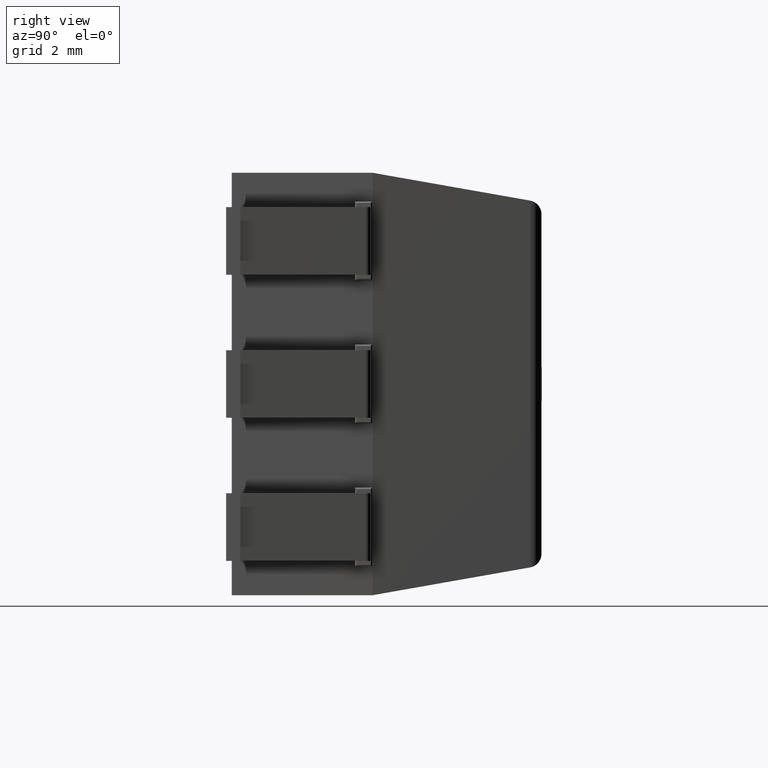
[diagram: clean part render]
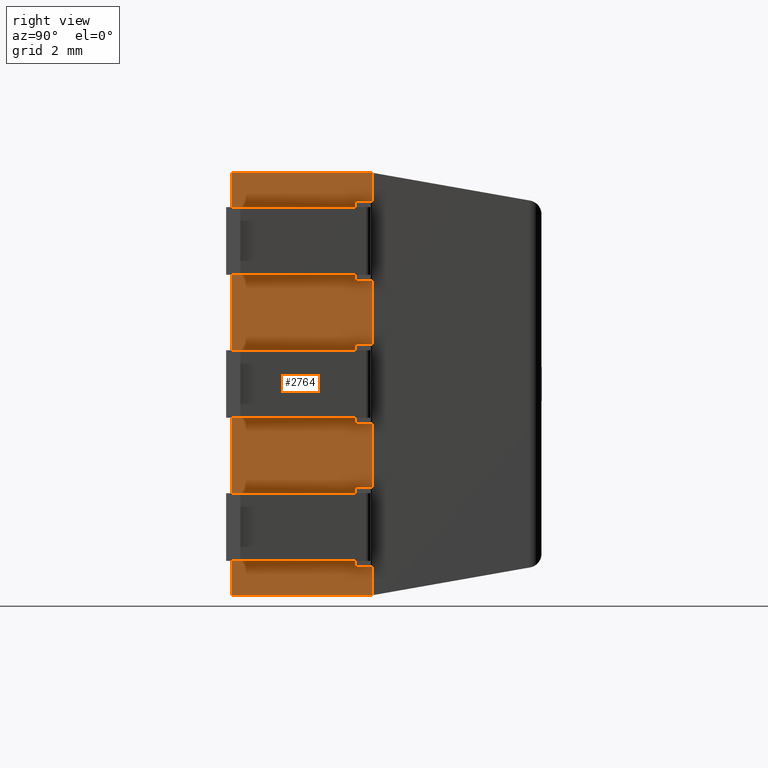
[diagram: same view with one face highlighted and labeled with its STEP entity id]
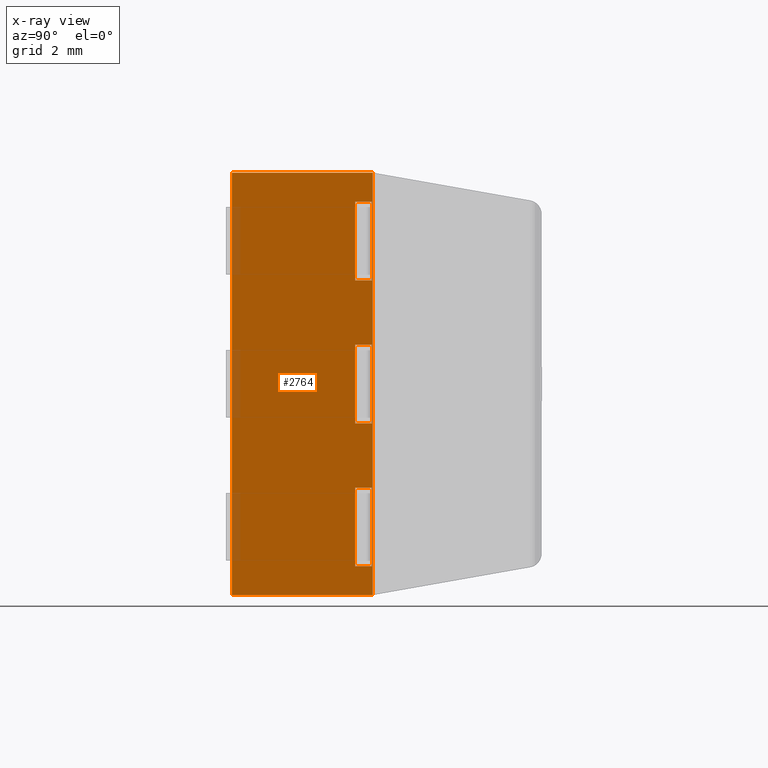
[diagram: x-ray of the same camera — body ghosted, the highlighted face saturated]
A machine part, right view. The second image highlights one B-rep face of the part: STEP entity #2764.
The next image is the same camera in x-ray: the body ghosted, the highlighted face saturated — about 3% of this face is hidden behind the body in this view.
In plain terms, the highlighted planar face has unit normal (-1, 0, 0).
Its self-contained STEP definition (entity closure, byte-faithful):
#40 = VERTEX_POINT ( 'NONE', #343 ) ;
#109 = CARTESIAN_POINT ( 'NONE',  ( 5.599999999999999600, 2.499999999999939600, -7.500000000000000000 ) ) ;
#149 = ORIENTED_EDGE ( 'NONE', *, *, #3380, .F. ) ;
#231 = VECTOR ( 'NONE', #7285, 1000.000000000000000 ) ;
#254 = VERTEX_POINT ( 'NONE', #4705 ) ;
#324 = DIRECTION ( 'NONE',  ( -1.000000000000000000, 0.0000000000000000000, 0.0000000000000000000 ) ) ;
#343 = CARTESIAN_POINT ( 'NONE',  ( 5.599999999999999600, 2.489999999999938500, -1.909999999999999700 ) ) ;
#386 = CARTESIAN_POINT ( 'NONE',  ( 5.599999999999999600, 2.189999999999940000, -0.5099999999999995600 ) ) ;
#416 = LINE ( 'NONE', #1636, #1145 ) ;
#533 = VERTEX_POINT ( 'NONE', #6320 ) ;
#674 = LINE ( 'NONE', #2965, #8564 ) ;
#685 = ORIENTED_EDGE ( 'NONE', *, *, #6857, .F. ) ;
#767 = CARTESIAN_POINT ( 'NONE',  ( 5.599999999999999600, 2.189999999999940000, -5.589999999999999900 ) ) ;
#810 = VERTEX_POINT ( 'NONE', #2325 ) ;
#840 = VERTEX_POINT ( 'NONE', #4392 ) ;
#895 = CARTESIAN_POINT ( 'NONE',  ( 5.599999999999999600, 2.189999999999940000, -3.049999999999999800 ) ) ;
#993 = DIRECTION ( 'NONE',  ( 0.0000000000000000000, 0.0000000000000000000, 1.000000000000000000 ) ) ;
#1145 = VECTOR ( 'NONE', #7045, 1000.000000000000000 ) ;
#1320 = VECTOR ( 'NONE', #5747, 1000.000000000000000 ) ;
#1374 = EDGE_CURVE ( 'NONE', #3674, #5842, #5937, .T. ) ;
#1452 = CARTESIAN_POINT ( 'NONE',  ( 5.599999999999999600, 2.489999999999939400, -4.450000000000000200 ) ) ;
#1472 = VERTEX_POINT ( 'NONE', #7945 ) ;
#1571 = DIRECTION ( 'NONE',  ( 0.0000000000000000000, 0.0000000000000000000, -1.000000000000000000 ) ) ;
#1636 = CARTESIAN_POINT ( 'NONE',  ( 5.599999999999999600, 2.489999999999939400, -1.209999999999999700 ) ) ;
#1677 = EDGE_LOOP ( 'NONE', ( #5415, #4771, #3094, #7980 ) ) ;
#1843 = VECTOR ( 'NONE', #5072, 1000.000000000000000 ) ;
#1902 = VERTEX_POINT ( 'NONE', #3246 ) ;
#1905 = DIRECTION ( 'NONE',  ( 0.0000000000000000000, -1.000000000000000000, 0.0000000000000000000 ) ) ;
#2109 = VERTEX_POINT ( 'NONE', #767 ) ;
#2230 = VERTEX_POINT ( 'NONE', #6978 ) ;
#2284 = LINE ( 'NONE', #3661, #1320 ) ;
#2288 = DIRECTION ( 'NONE',  ( 0.0000000000000000000, 0.0000000000000000000, -1.000000000000000000 ) ) ;
#2325 = CARTESIAN_POINT ( 'NONE',  ( 5.599999999999999600, 2.489999999999940300, -0.5099999999999995600 ) ) ;
#2425 = ORIENTED_EDGE ( 'NONE', *, *, #7638, .F. ) ;
#2543 = EDGE_CURVE ( 'NONE', #840, #533, #6953, .T. ) ;
#2579 = LINE ( 'NONE', #3287, #3443 ) ;
#2732 = AXIS2_PLACEMENT_3D ( 'NONE', #8365, #324, #993 ) ;
#2759 = ORIENTED_EDGE ( 'NONE', *, *, #5124, .F. ) ;
#2764 = ADVANCED_FACE ( 'NONE', ( #8611, #8285, #6432, #6533 ), #6292, .F. ) ;
#2808 = DIRECTION ( 'NONE',  ( -0.0000000000000000000, 1.000000000000000000, -0.0000000000000000000 ) ) ;
#2832 = VECTOR ( 'NONE', #7820, 1000.000000000000000 ) ;
#2965 = CARTESIAN_POINT ( 'NONE',  ( 5.599999999999999600, 5.500000000000000000, 0.0000000000000000000 ) ) ;
#3019 = EDGE_LOOP ( 'NONE', ( #7524, #6665, #2425, #6167 ) ) ;
#3075 = ORIENTED_EDGE ( 'NONE', *, *, #3927, .F. ) ;
#3079 = CARTESIAN_POINT ( 'NONE',  ( 5.599999999999999600, 0.0000000000000000000, 0.0000000000000000000 ) ) ;
#3094 = ORIENTED_EDGE ( 'NONE', *, *, #3720, .T. ) ;
#3168 = EDGE_CURVE ( 'NONE', #6384, #8234, #6939, .T. ) ;
#3246 = CARTESIAN_POINT ( 'NONE',  ( 5.599999999999999600, 2.189999999999940000, -4.450000000000000200 ) ) ;
#3269 = CARTESIAN_POINT ( 'NONE',  ( 5.599999999999999600, 2.489999999999940300, -5.589999999999999900 ) ) ;
#3287 = CARTESIAN_POINT ( 'NONE',  ( 5.599999999999999600, 2.489999999999939400, -6.290000000000000000 ) ) ;
#3293 = LINE ( 'NONE', #3269, #7899 ) ;
#3332 = LINE ( 'NONE', #7534, #8668 ) ;
#3380 = EDGE_CURVE ( 'NONE', #5536, #254, #2284, .T. ) ;
#3415 = DIRECTION ( 'NONE',  ( 0.0000000000000000000, 1.239088197126290700E-015, 1.000000000000000000 ) ) ;
#3438 = EDGE_LOOP ( 'NONE', ( #3806, #3075, #149, #2759 ) ) ;
#3443 = VECTOR ( 'NONE', #7961, 1000.000000000000000 ) ;
#3450 = EDGE_CURVE ( 'NONE', #6384, #3841, #5551, .T. ) ;
#3578 = CARTESIAN_POINT ( 'NONE',  ( 5.599999999999999600, 0.0000000000000000000, -7.500000000000000000 ) ) ;
#3590 = VECTOR ( 'NONE', #6201, 1000.000000000000000 ) ;
#3661 = CARTESIAN_POINT ( 'NONE',  ( 5.599999999999999600, 2.489999999999939400, -6.989999999999999300 ) ) ;
#3674 = VERTEX_POINT ( 'NONE', #4907 ) ;
#3699 = ORIENTED_EDGE ( 'NONE', *, *, #4148, .F. ) ;
#3720 = EDGE_CURVE ( 'NONE', #3841, #4336, #674, .T. ) ;
#3800 = CARTESIAN_POINT ( 'NONE',  ( 5.599999999999999600, 0.0000000000000000000, 0.0000000000000000000 ) ) ;
#3806 = ORIENTED_EDGE ( 'NONE', *, *, #4953, .F. ) ;
#3841 = VERTEX_POINT ( 'NONE', #6634 ) ;
#3904 = VECTOR ( 'NONE', #1571, 1000.000000000000000 ) ;
#3927 = EDGE_CURVE ( 'NONE', #254, #2230, #2579, .T. ) ;
#3967 = VECTOR ( 'NONE', #2808, 1000.000000000000000 ) ;
#3984 = VECTOR ( 'NONE', #4806, 1000.000000000000000 ) ;
#4006 = CARTESIAN_POINT ( 'NONE',  ( 5.599999999999999600, 5.500000000000000000, -7.500000000000000000 ) ) ;
#4050 = CARTESIAN_POINT ( 'NONE',  ( 5.599999999999999600, 2.489999999999939400, -1.909999999999999700 ) ) ;
#4148 = EDGE_CURVE ( 'NONE', #810, #3674, #3332, .T. ) ;
#4336 = VERTEX_POINT ( 'NONE', #3800 ) ;
#4392 = CARTESIAN_POINT ( 'NONE',  ( 5.599999999999999600, 2.489999999999938500, -4.450000000000000200 ) ) ;
#4403 = LINE ( 'NONE', #1452, #3967 ) ;
#4542 = LINE ( 'NONE', #5425, #6862 ) ;
#4616 = LINE ( 'NONE', #3079, #2832 ) ;
#4705 = CARTESIAN_POINT ( 'NONE',  ( 5.599999999999999600, 2.489999999999938500, -6.989999999999999300 ) ) ;
#4771 = ORIENTED_EDGE ( 'NONE', *, *, #3450, .T. ) ;
#4806 = DIRECTION ( 'NONE',  ( -0.0000000000000000000, -1.000000000000000000, -0.0000000000000000000 ) ) ;
#4907 = CARTESIAN_POINT ( 'NONE',  ( 5.599999999999999600, 2.189999999999940000, -0.5099999999999995600 ) ) ;
#4953 = EDGE_CURVE ( 'NONE', #2230, #2109, #3293, .T. ) ;
#5072 = DIRECTION ( 'NONE',  ( 0.0000000000000000000, 0.0000000000000000000, 1.000000000000000000 ) ) ;
#5124 = EDGE_CURVE ( 'NONE', #2109, #5536, #4542, .T. ) ;
#5168 = ORIENTED_EDGE ( 'NONE', *, *, #8188, .F. ) ;
#5328 = CARTESIAN_POINT ( 'NONE',  ( 5.599999999999999600, 2.489999999999939400, -3.750000000000000000 ) ) ;
#5415 = ORIENTED_EDGE ( 'NONE', *, *, #3168, .F. ) ;
#5425 = CARTESIAN_POINT ( 'NONE',  ( 5.599999999999999600, 2.189999999999940000, -5.589999999999999900 ) ) ;
#5472 = LINE ( 'NONE', #4050, #7861 ) ;
#5536 = VERTEX_POINT ( 'NONE', #7826 ) ;
#5551 = LINE ( 'NONE', #8382, #1843 ) ;
#5645 = DIRECTION ( 'NONE',  ( -0.0000000000000000000, -1.000000000000000000, -0.0000000000000000000 ) ) ;
#5747 = DIRECTION ( 'NONE',  ( -0.0000000000000000000, 1.000000000000000000, -0.0000000000000000000 ) ) ;
#5842 = VERTEX_POINT ( 'NONE', #7472 ) ;
#5904 = LINE ( 'NONE', #895, #3904 ) ;
#5937 = LINE ( 'NONE', #386, #231 ) ;
#6167 = ORIENTED_EDGE ( 'NONE', *, *, #8174, .F. ) ;
#6201 = DIRECTION ( 'NONE',  ( 0.0000000000000000000, -1.000000000000000000, 0.0000000000000000000 ) ) ;
#6292 = PLANE ( 'NONE',  #2732 ) ;
#6320 = CARTESIAN_POINT ( 'NONE',  ( 5.599999999999999600, 2.489999999999940300, -3.049999999999999800 ) ) ;
#6374 = EDGE_LOOP ( 'NONE', ( #3699, #5168, #685, #6532 ) ) ;
#6384 = VERTEX_POINT ( 'NONE', #109 ) ;
#6432 = FACE_BOUND ( 'NONE', #3019, .T. ) ;
#6532 = ORIENTED_EDGE ( 'NONE', *, *, #1374, .F. ) ;
#6533 = FACE_BOUND ( 'NONE', #6374, .T. ) ;
#6546 = EDGE_CURVE ( 'NONE', #533, #1472, #7167, .T. ) ;
#6634 = CARTESIAN_POINT ( 'NONE',  ( 5.599999999999999600, 2.499999999999939600, 0.0000000000000000000 ) ) ;
#6665 = ORIENTED_EDGE ( 'NONE', *, *, #2543, .F. ) ;
#6857 = EDGE_CURVE ( 'NONE', #5842, #40, #5472, .T. ) ;
#6862 = VECTOR ( 'NONE', #2288, 1000.000000000000000 ) ;
#6939 = LINE ( 'NONE', #4006, #3984 ) ;
#6953 = LINE ( 'NONE', #5328, #7263 ) ;
#6978 = CARTESIAN_POINT ( 'NONE',  ( 5.599999999999999600, 2.489999999999940300, -5.589999999999999900 ) ) ;
#7045 = DIRECTION ( 'NONE',  ( 0.0000000000000000000, 1.239088197126290700E-015, 1.000000000000000000 ) ) ;
#7167 = LINE ( 'NONE', #7486, #3590 ) ;
#7263 = VECTOR ( 'NONE', #3415, 1000.000000000000000 ) ;
#7285 = DIRECTION ( 'NONE',  ( 0.0000000000000000000, 0.0000000000000000000, -1.000000000000000000 ) ) ;
#7325 = EDGE_CURVE ( 'NONE', #4336, #8234, #4616, .T. ) ;
#7427 = DIRECTION ( 'NONE',  ( -0.0000000000000000000, 1.000000000000000000, -0.0000000000000000000 ) ) ;
#7472 = CARTESIAN_POINT ( 'NONE',  ( 5.599999999999999600, 2.189999999999940000, -1.909999999999999700 ) ) ;
#7486 = CARTESIAN_POINT ( 'NONE',  ( 5.599999999999999600, 2.489999999999940300, -3.049999999999999800 ) ) ;
#7524 = ORIENTED_EDGE ( 'NONE', *, *, #6546, .F. ) ;
#7534 = CARTESIAN_POINT ( 'NONE',  ( 5.599999999999999600, 2.489999999999940300, -0.5099999999999995600 ) ) ;
#7556 = DIRECTION ( 'NONE',  ( 0.0000000000000000000, -1.000000000000000000, 0.0000000000000000000 ) ) ;
#7638 = EDGE_CURVE ( 'NONE', #1902, #840, #4403, .T. ) ;
#7820 = DIRECTION ( 'NONE',  ( 0.0000000000000000000, 0.0000000000000000000, -1.000000000000000000 ) ) ;
#7826 = CARTESIAN_POINT ( 'NONE',  ( 5.599999999999999600, 2.189999999999940000, -6.989999999999999300 ) ) ;
#7861 = VECTOR ( 'NONE', #7427, 1000.000000000000000 ) ;
#7899 = VECTOR ( 'NONE', #1905, 1000.000000000000000 ) ;
#7945 = CARTESIAN_POINT ( 'NONE',  ( 5.599999999999999600, 2.189999999999940000, -3.049999999999999800 ) ) ;
#7961 = DIRECTION ( 'NONE',  ( 0.0000000000000000000, 1.239088197126290700E-015, 1.000000000000000000 ) ) ;
#7980 = ORIENTED_EDGE ( 'NONE', *, *, #7325, .T. ) ;
#8174 = EDGE_CURVE ( 'NONE', #1472, #1902, #5904, .T. ) ;
#8188 = EDGE_CURVE ( 'NONE', #40, #810, #416, .T. ) ;
#8234 = VERTEX_POINT ( 'NONE', #3578 ) ;
#8285 = FACE_OUTER_BOUND ( 'NONE', #1677, .T. ) ;
#8365 = CARTESIAN_POINT ( 'NONE',  ( 5.599999999999999600, 5.500000000000000000, 0.0000000000000000000 ) ) ;
#8382 = CARTESIAN_POINT ( 'NONE',  ( 5.599999999999999600, 2.499999999999939600, 0.0000000000000000000 ) ) ;
#8564 = VECTOR ( 'NONE', #5645, 1000.000000000000000 ) ;
#8611 = FACE_BOUND ( 'NONE', #3438, .T. ) ;
#8668 = VECTOR ( 'NONE', #7556, 1000.000000000000000 ) ;